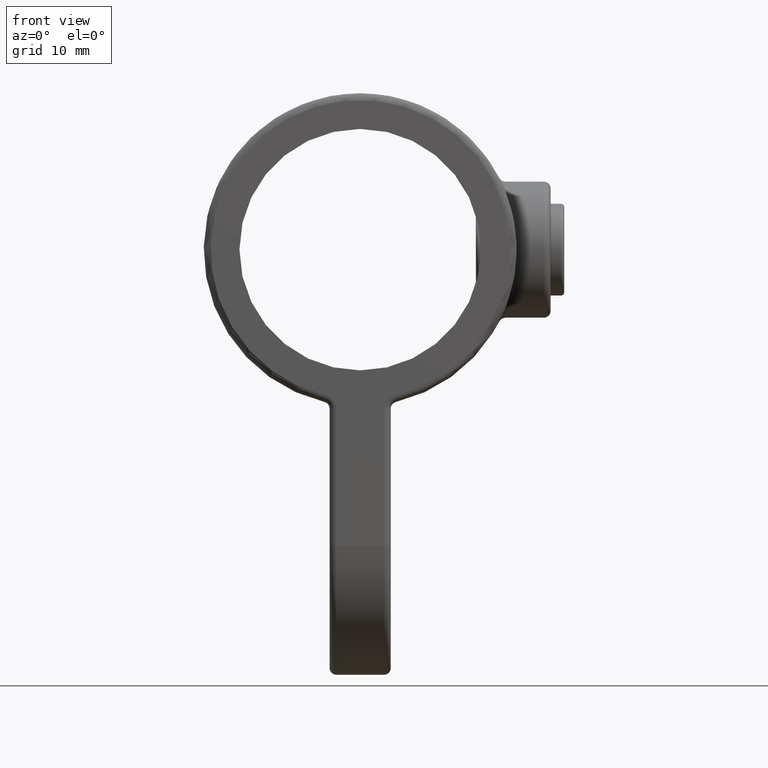
[diagram: clean part render]
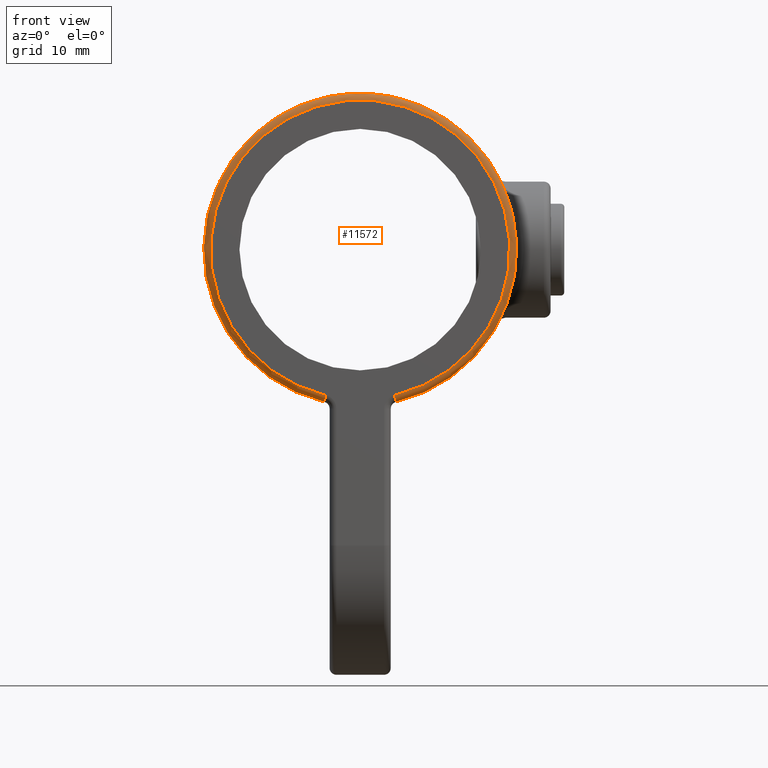
[diagram: same view with one face highlighted and labeled with its STEP entity id]
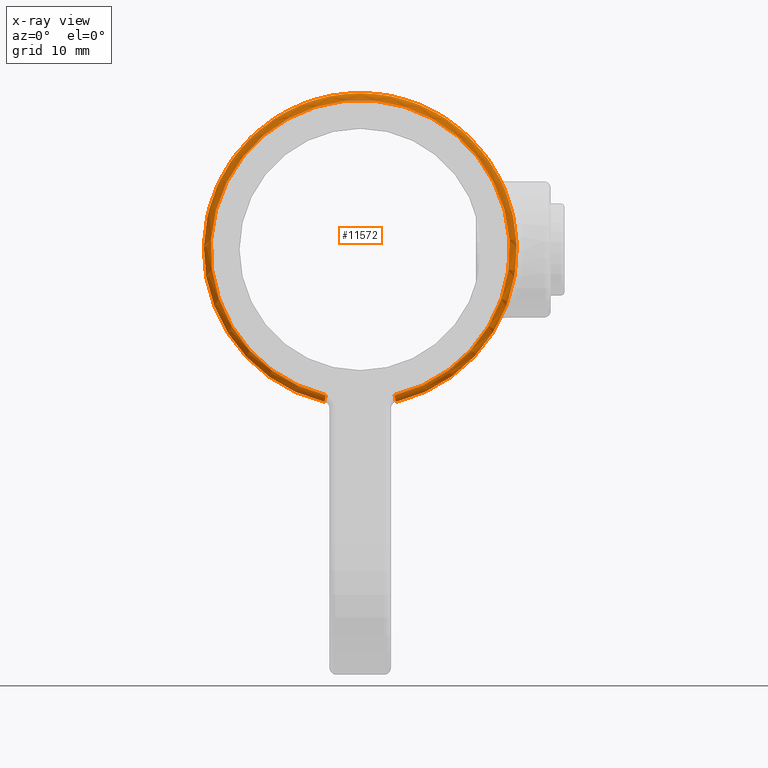
[diagram: x-ray of the same camera — body ghosted, the highlighted face saturated]
A machine part, front view. The second image highlights one B-rep face of the part: STEP entity #11572.
The next image is the same camera in x-ray: the body ghosted, the highlighted face saturated — about 0% of this face is hidden behind the body in this view.
In plain terms, the highlighted toroidal blend (fillet) surface has major radius 22 mm and minor (blend) radius 1 mm.
Its self-contained STEP definition (entity closure, byte-faithful):
#364 = DIRECTION ( 'NONE',  ( 0.9733871988519722240, 0.000000000000000000, 0.2291666666666666019 ) ) ;
#825 = AXIS2_PLACEMENT_3D ( 'NONE', #9284, #8292, #11133 ) ;
#1144 = CARTESIAN_POINT ( 'NONE',  ( 5.041666666666666075, -19.00000000000000000, -21.41451837474339470 ) ) ;
#1220 = EDGE_CURVE ( 'NONE', #1504, #6739, #6353, .T. ) ;
#1441 = AXIS2_PLACEMENT_3D ( 'NONE', #6119, #364, #9124 ) ;
#1504 = VERTEX_POINT ( 'NONE', #2737 ) ;
#1756 = DIRECTION ( 'NONE',  ( -0.000000000000000000, -1.000000000000000000, -0.000000000000000000 ) ) ;
#2737 = CARTESIAN_POINT ( 'NONE',  ( -5.041666666666666075, -19.00000000000000000, -21.41451837474339470 ) ) ;
#3101 = EDGE_LOOP ( 'NONE', ( #9196, #3475, #7715, #7042 ) ) ;
#3324 = DIRECTION ( 'NONE',  ( 0.000000000000000000, 1.000000000000000000, 0.000000000000000000 ) ) ;
#3475 = ORIENTED_EDGE ( 'NONE', *, *, #11241, .F. ) ;
#3659 = TOROIDAL_SURFACE ( 'NONE', #825, 22.00000000000000355, 1.000000000000000000 ) ;
#3975 = EDGE_CURVE ( 'NONE', #8999, #1504, #9794, .T. ) ;
#4261 = CIRCLE ( 'NONE', #6148, 23.00000000000000355 ) ;
#4693 = DIRECTION ( 'NONE',  ( -0.2291666666666665741, 0.000000000000000000, -0.9733871988519722240 ) ) ;
#5557 = CARTESIAN_POINT ( 'NONE',  ( 0.000000000000000000, -19.00000000000000000, 0.000000000000000000 ) ) ;
#6119 = CARTESIAN_POINT ( 'NONE',  ( 5.041666666666666075, -18.00000000000000000, -21.41451837474339470 ) ) ;
#6148 = AXIS2_PLACEMENT_3D ( 'NONE', #10885, #3324, #11916 ) ;
#6353 = CIRCLE ( 'NONE', #7333, 1.000000000000000000 ) ;
#6739 = VERTEX_POINT ( 'NONE', #10318 ) ;
#7042 = ORIENTED_EDGE ( 'NONE', *, *, #3975, .F. ) ;
#7333 = AXIS2_PLACEMENT_3D ( 'NONE', #12438, #9508, #4693 ) ;
#7715 = ORIENTED_EDGE ( 'NONE', *, *, #1220, .F. ) ;
#8292 = DIRECTION ( 'NONE',  ( 0.000000000000000000, 1.000000000000000000, 0.000000000000000000 ) ) ;
#8723 = AXIS2_PLACEMENT_3D ( 'NONE', #5557, #1756, #11286 ) ;
#8999 = VERTEX_POINT ( 'NONE', #1144 ) ;
#9014 = VERTEX_POINT ( 'NONE', #11859 ) ;
#9124 = DIRECTION ( 'NONE',  ( -0.2291666666666665741, 0.000000000000000000, 0.9733871988519722240 ) ) ;
#9196 = ORIENTED_EDGE ( 'NONE', *, *, #10153, .T. ) ;
#9284 = CARTESIAN_POINT ( 'NONE',  ( 0.000000000000000000, -18.00000000000000000, 0.000000000000000000 ) ) ;
#9508 = DIRECTION ( 'NONE',  ( 0.9733871988519722240, 0.000000000000000000, -0.2291666666666666019 ) ) ;
#9794 = CIRCLE ( 'NONE', #8723, 22.00000000000000355 ) ;
#10153 = EDGE_CURVE ( 'NONE', #8999, #9014, #11937, .T. ) ;
#10318 = CARTESIAN_POINT ( 'NONE',  ( -5.270833333333333037, -18.00000000000000000, -22.38790557359536493 ) ) ;
#10885 = CARTESIAN_POINT ( 'NONE',  ( 0.000000000000000000, -18.00000000000000000, 0.000000000000000000 ) ) ;
#10979 = FACE_OUTER_BOUND ( 'NONE', #3101, .T. ) ;
#11133 = DIRECTION ( 'NONE',  ( 0.000000000000000000, 0.000000000000000000, 1.000000000000000000 ) ) ;
#11241 = EDGE_CURVE ( 'NONE', #6739, #9014, #4261, .T. ) ;
#11286 = DIRECTION ( 'NONE',  ( 0.000000000000000000, 0.000000000000000000, 1.000000000000000000 ) ) ;
#11572 = ADVANCED_FACE ( 'NONE', ( #10979 ), #3659, .T. ) ;
#11859 = CARTESIAN_POINT ( 'NONE',  ( 5.270833333333333037, -18.00000000000000000, -22.38790557359536493 ) ) ;
#11916 = DIRECTION ( 'NONE',  ( 0.000000000000000000, 0.000000000000000000, 1.000000000000000000 ) ) ;
#11937 = CIRCLE ( 'NONE', #1441, 1.000000000000000000 ) ;
#12438 = CARTESIAN_POINT ( 'NONE',  ( -5.041666666666666075, -18.00000000000000000, -21.41451837474339470 ) ) ;